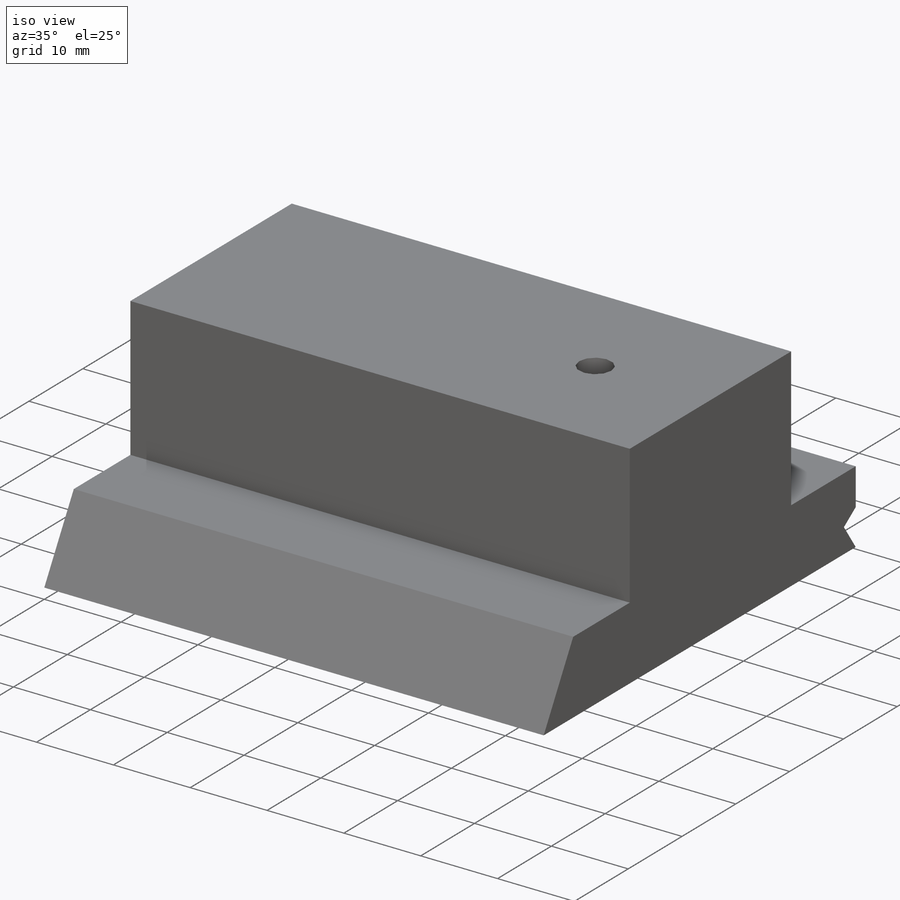
[diagram: iso view]
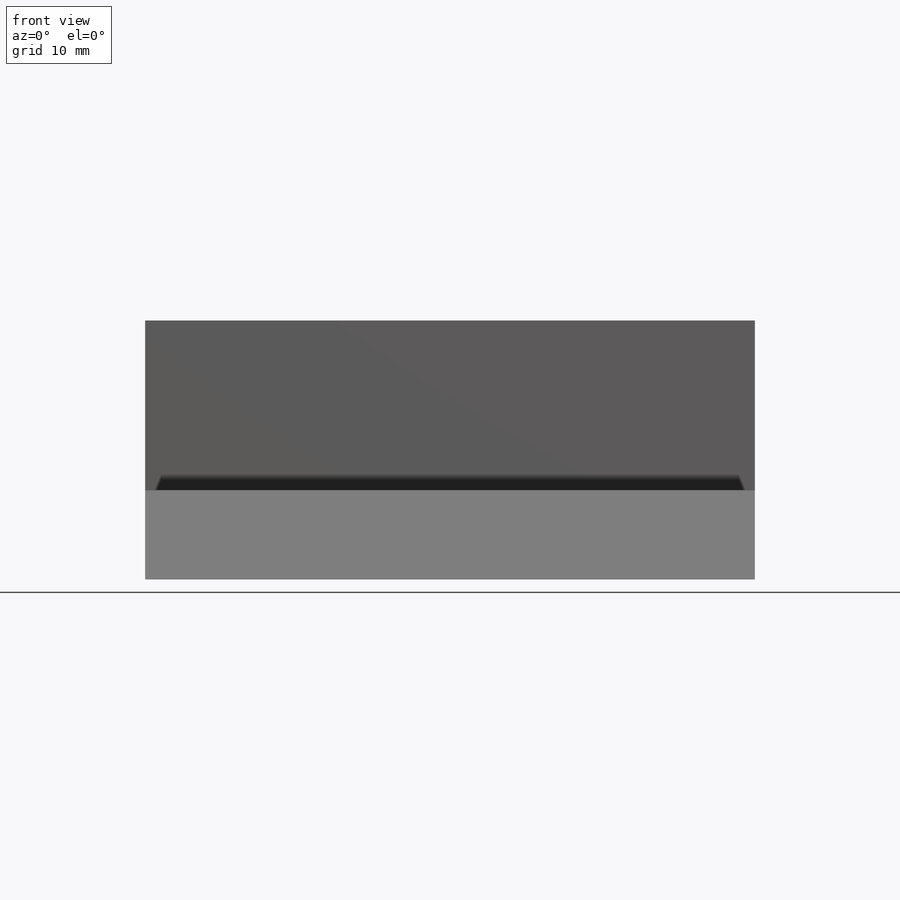
[diagram: front view]
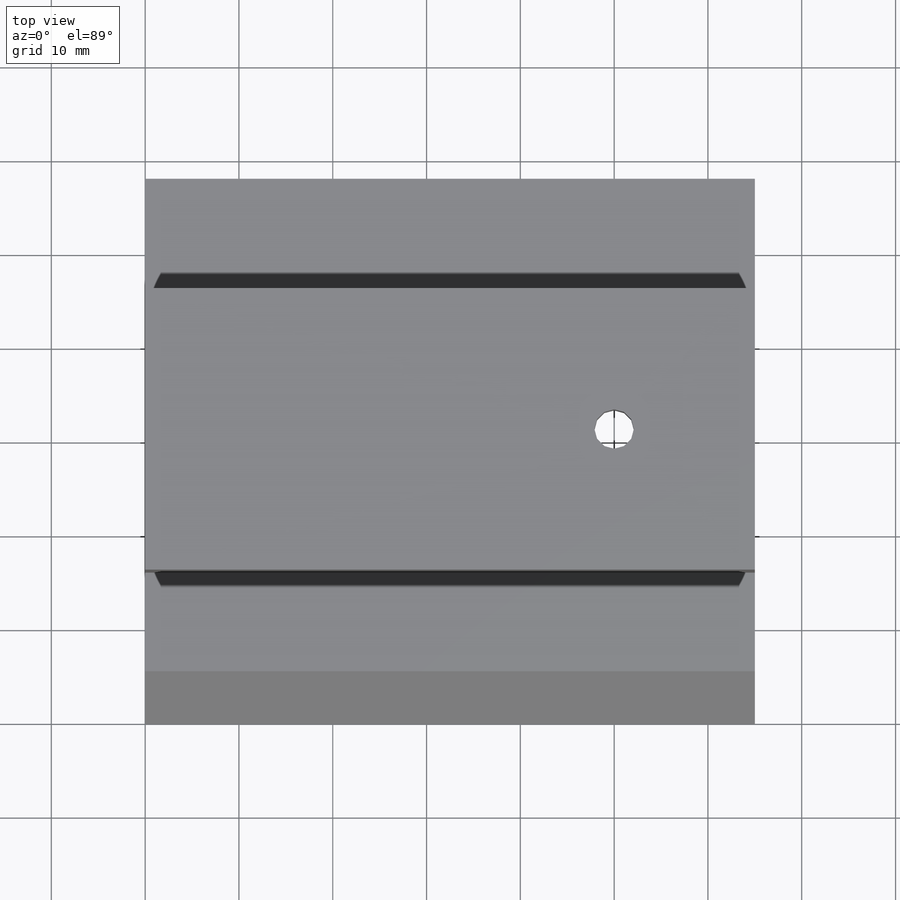
[diagram: top view]
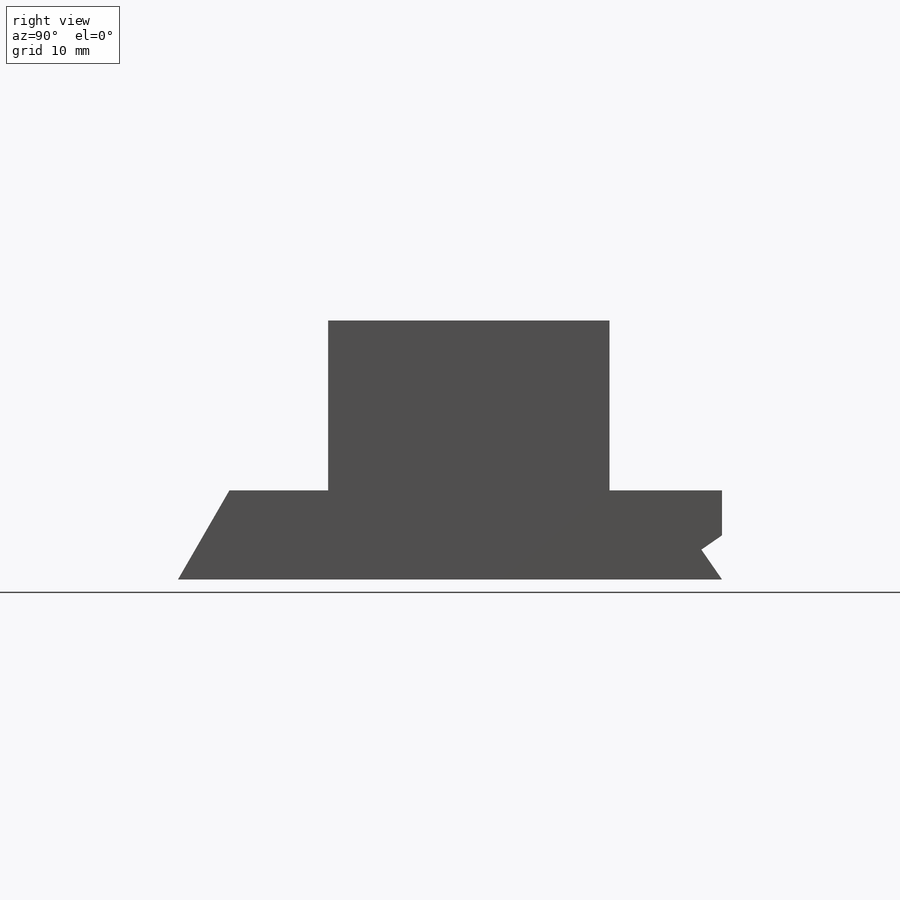
[diagram: right view]
SOLIDWORKS PART (.sldprt)
format: sldprt  version: not decoded by parser v0  size: 190,976 bytes
history: native  units: mm
features: sketch x6, cut_extrude x4, extrude x2, material x1 (+11 scaffold rows collapsed)
feature tree (24):
  scaffold x11  (default folders/planes/origin — collapsed)
  material  "Chrome Stainless Steel"
  sketch  "Sketch1"  dims[D1=65.0mm D2=58.0mm]
  extrude  "Extrude1"  Depth=9.5mm
  sketch  "Sketch2"  dims[c1.D1=5.0mm c2.D1=60.0deg]
  cut_extrude  "Extrude2"  [1 undecoded]
  sketch  "Sketch3"  dims[D1=4.7mm D2=2.2mm]
  cut_extrude  "Extrude3"  [1 undecoded]
  sketch  "Sketch4"  dims[D1=12.0mm D2=30.0mm D3=18.1mm D4=53.0mm]
  extrude  "Extrude4"  [1 undecoded]
  sketch  "Sketch5"  dims[c1.D1=~6.715815mm c1.D2=4.2mm c1.D3=4.2mm c2.D1=15.0mm c2.D3=15.0mm]
  cut_extrude  "Extrude5"  [1 undecoded]
  sketch  "Sketch6"  dims[D1=8.0mm]
  cut_extrude  "Extrude6"  Depth=20mm
decode coverage: 8 of 12 modeling features carry decoded parameters
note: ~ marks probable driven/reference dimensions
note: 4 parameter values undecoded
summary: no parameter record found for 4 features
note: suppression state not decoded; provenance and decode notes live in map.json
